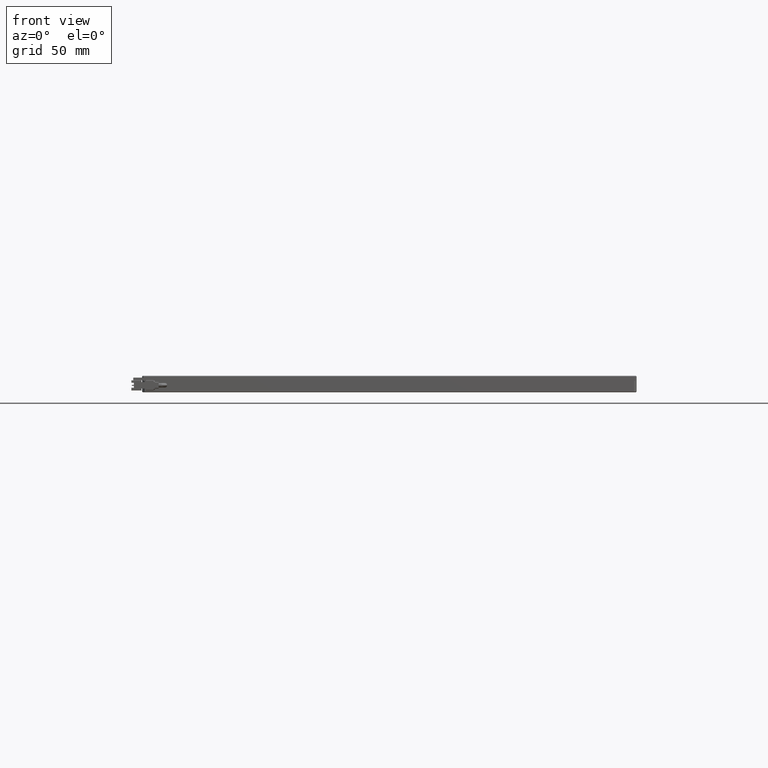
[diagram: clean part render]
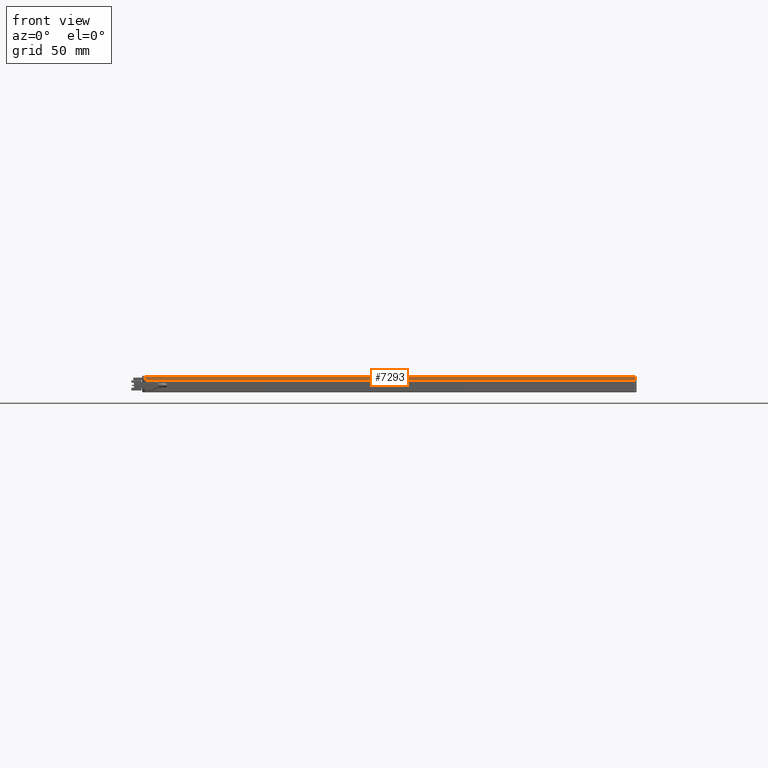
[diagram: same view with one face highlighted and labeled with its STEP entity id]
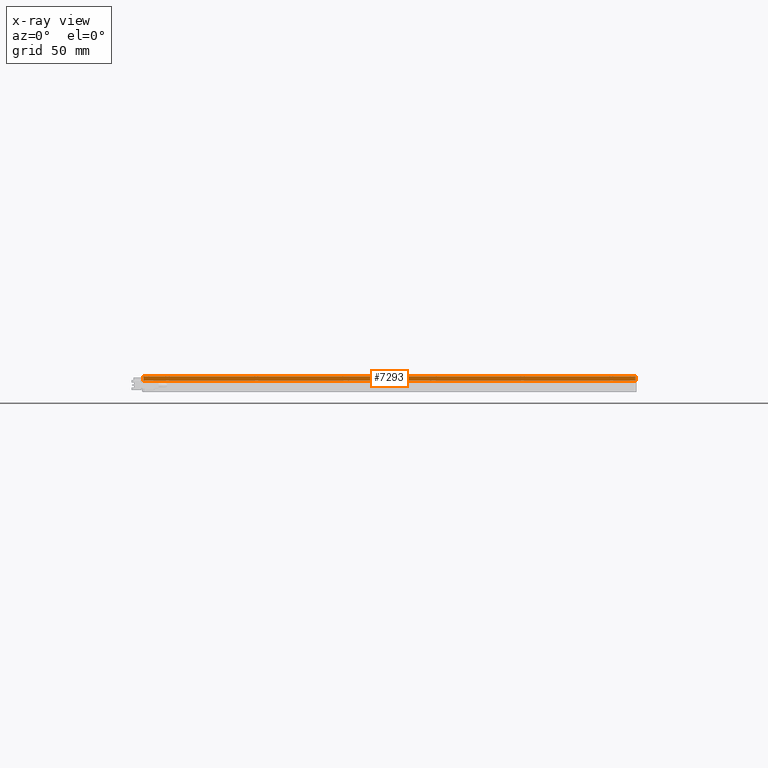
[diagram: x-ray of the same camera — body ghosted, the highlighted face saturated]
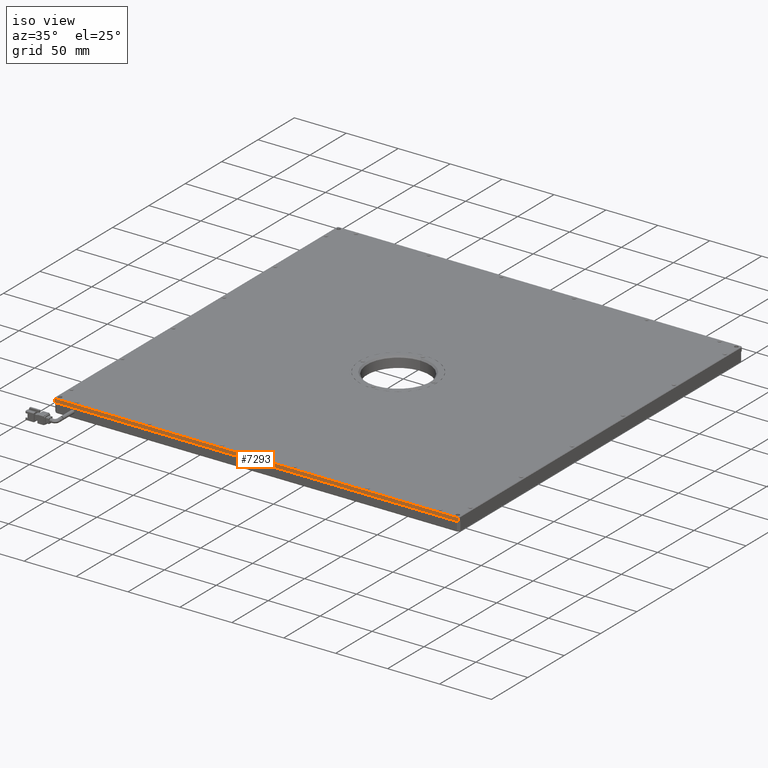
[diagram: same view with one face highlighted and labeled with its STEP entity id]
A machine part, front view. The second image highlights one B-rep face of the part: STEP entity #7293.
The next image is the same camera in x-ray: the body ghosted, the highlighted face saturated — about 0% of this face is hidden behind the body in this view.
A second angle (iso view) of the same face is appended — the face is thin or edge-on in the first view.
In plain terms, the highlighted planar face has unit normal (-0, 1, 0).
Its self-contained STEP definition (entity closure, byte-faithful):
#113 = FACE_OUTER_BOUND ( 'NONE', #14355, .T. ) ;
#1007 = VERTEX_POINT ( 'NONE', #13393 ) ;
#1186 = LINE ( 'NONE', #11558, #1730 ) ;
#1436 = DIRECTION ( 'NONE',  ( 1.000000000000000000, 1.423362852083534100E-016, -0.0000000000000000000 ) ) ;
#1730 = VECTOR ( 'NONE', #1436, 1000.000000000000000 ) ;
#2352 = PLANE ( 'NONE',  #11576 ) ;
#2864 = DIRECTION ( 'NONE',  ( 0.0000000000000000000, 0.0000000000000000000, 1.000000000000000000 ) ) ;
#3209 = VERTEX_POINT ( 'NONE', #13508 ) ;
#3903 = CARTESIAN_POINT ( 'NONE',  ( 160.8515982014610000, -174.5770270270280700, 8.249999999999998200 ) ) ;
#4028 = LINE ( 'NONE', #13082, #8291 ) ;
#4048 = DIRECTION ( 'NONE',  ( -1.000000000000000000, -1.423362852083534100E-016, 0.0000000000000000000 ) ) ;
#4199 = CARTESIAN_POINT ( 'NONE',  ( -228.1484017985390800, -174.5770270270281200, 4.249999999999996400 ) ) ;
#5251 = ORIENTED_EDGE ( 'NONE', *, *, #9674, .F. ) ;
#6138 = EDGE_CURVE ( 'NONE', #16698, #3209, #10603, .T. ) ;
#6402 = CARTESIAN_POINT ( 'NONE',  ( -228.1484017985391100, -174.5770270270281200, 7.749999999999998200 ) ) ;
#7293 = ADVANCED_FACE ( 'NONE', ( #113 ), #2352, .F. ) ;
#8272 = DIRECTION ( 'NONE',  ( -0.0000000000000000000, -0.0000000000000000000, -1.000000000000000000 ) ) ;
#8291 = VECTOR ( 'NONE', #2864, 1000.000000000000000 ) ;
#8770 = CARTESIAN_POINT ( 'NONE',  ( -229.1484017985390300, -174.5770270270281200, 4.249999999999998200 ) ) ;
#9674 = EDGE_CURVE ( 'NONE', #16698, #12925, #4028, .T. ) ;
#10182 = DIRECTION ( 'NONE',  ( 1.000000000000000000, 0.0000000000000000000, -0.0000000000000000000 ) ) ;
#10603 = LINE ( 'NONE', #8770, #11417 ) ;
#10644 = ORIENTED_EDGE ( 'NONE', *, *, #17438, .F. ) ;
#11417 = VECTOR ( 'NONE', #10182, 1000.000000000000000 ) ;
#11558 = CARTESIAN_POINT ( 'NONE',  ( 160.8515982014610000, -174.5770270270280700, 7.749999999999989300 ) ) ;
#11576 = AXIS2_PLACEMENT_3D ( 'NONE', #3903, #14277, #4048 ) ;
#11735 = ORIENTED_EDGE ( 'NONE', *, *, #11837, .F. ) ;
#11837 = EDGE_CURVE ( 'NONE', #12925, #1007, #1186, .T. ) ;
#12925 = VERTEX_POINT ( 'NONE', #6402 ) ;
#13082 = CARTESIAN_POINT ( 'NONE',  ( -228.1484017985390600, -174.5770270270281200, 8.249999999999998200 ) ) ;
#13393 = CARTESIAN_POINT ( 'NONE',  ( 159.8515982014610300, -174.5770270270280700, 7.749999999999984000 ) ) ;
#13508 = CARTESIAN_POINT ( 'NONE',  ( 159.8515982014609400, -174.5770270270280700, 4.249999999999996400 ) ) ;
#14068 = VECTOR ( 'NONE', #8272, 1000.000000000000000 ) ;
#14277 = DIRECTION ( 'NONE',  ( -1.423362852083534100E-016, 1.000000000000000000, 0.0000000000000000000 ) ) ;
#14355 = EDGE_LOOP ( 'NONE', ( #11735, #5251, #21025, #10644 ) ) ;
#16698 = VERTEX_POINT ( 'NONE', #4199 ) ;
#17438 = EDGE_CURVE ( 'NONE', #1007, #3209, #20948, .T. ) ;
#19548 = CARTESIAN_POINT ( 'NONE',  ( 159.8515982014609400, -174.5770270270280700, 8.249999999999998200 ) ) ;
#20948 = LINE ( 'NONE', #19548, #14068 ) ;
#21025 = ORIENTED_EDGE ( 'NONE', *, *, #6138, .T. ) ;